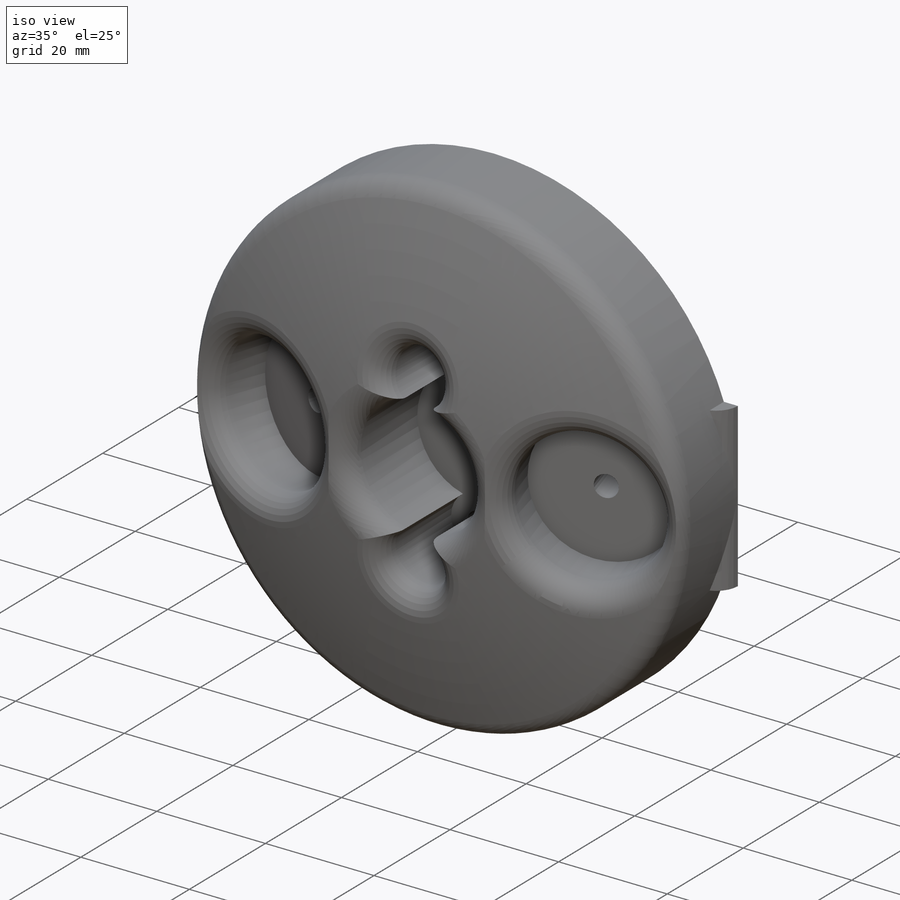
[diagram: iso view]
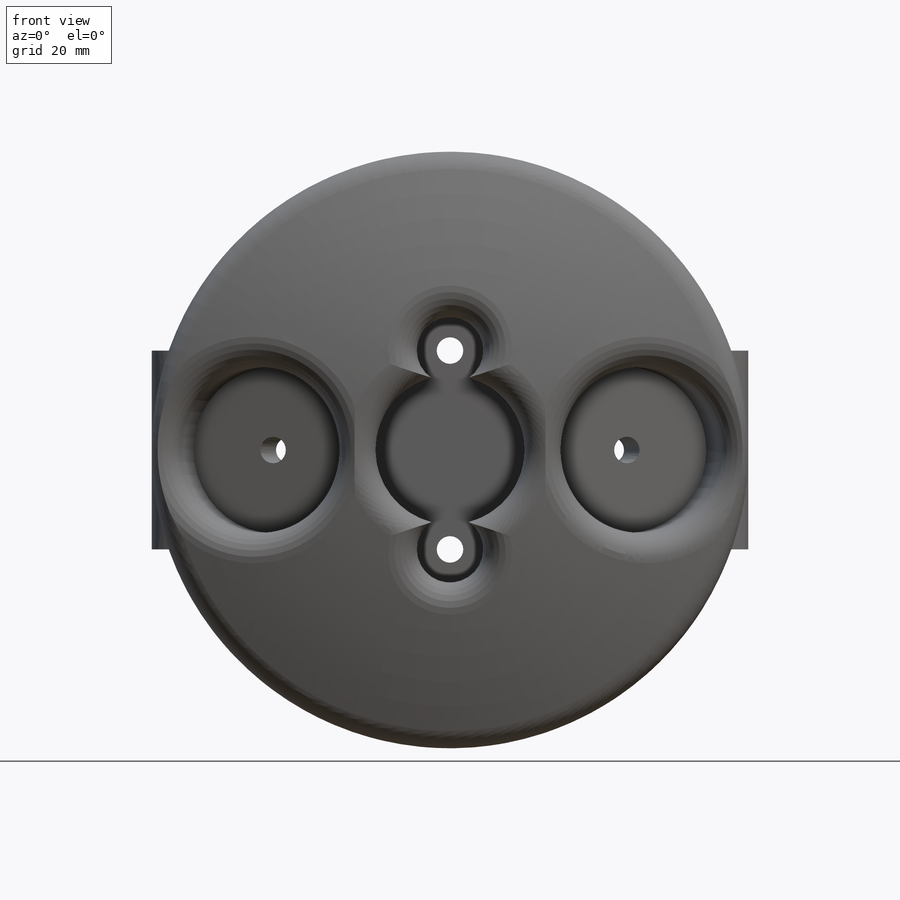
[diagram: front view]
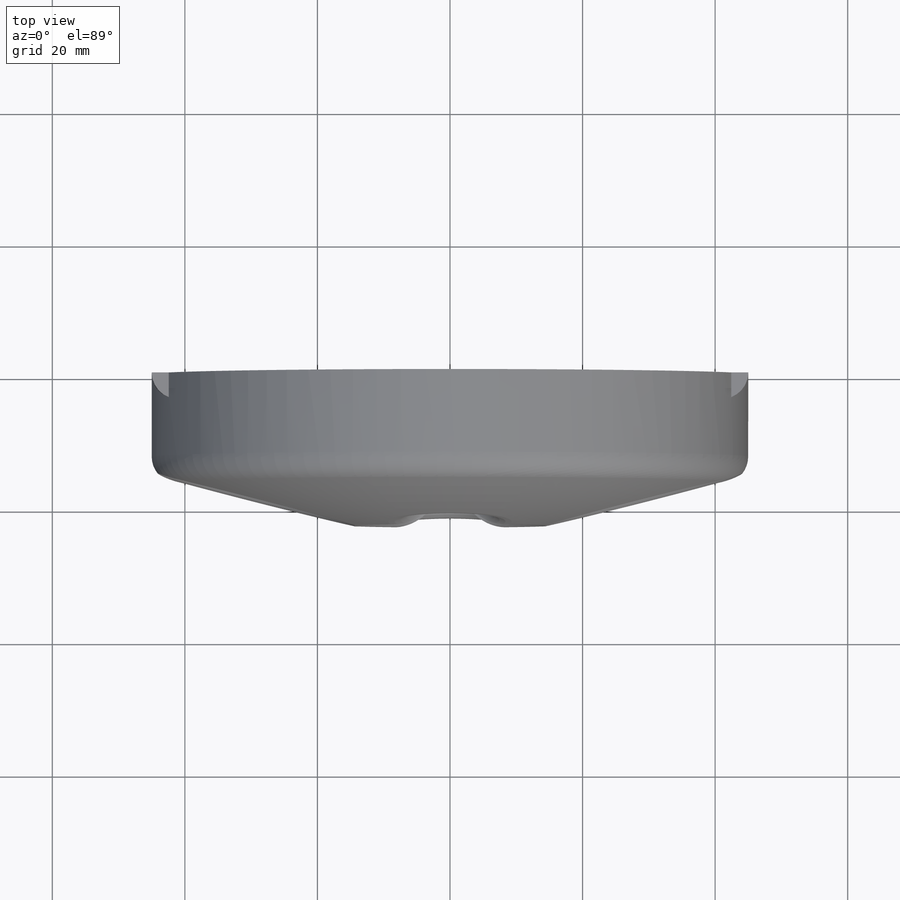
[diagram: top view]
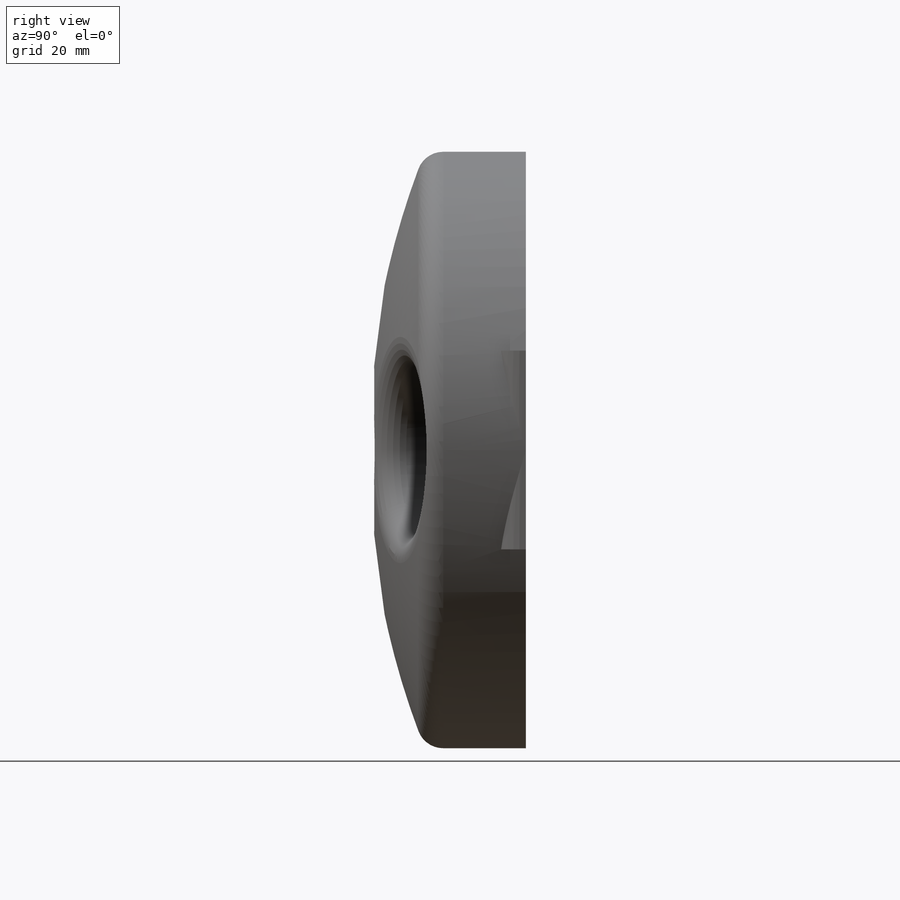
[diagram: right view]
SOLIDWORKS PART (.sldprt)
format: sldprt  version: not decoded by parser v0  size: 545,280 bytes
history: native  units: mm
features: sketch x9, cut_extrude x5, plane x3, extrude x2, fillet x2, mirror x2, material x1, revolve x1 (+10 scaffold rows collapsed)
feature tree (35):
  scaffold x10  (default folders/planes/origin — collapsed)
  material  "材质 <未指定>"
  plane  "前视基准面"
  plane  "上视基准面"
  plane  "右视基准面"
  sketch  "草图1"  dims[D1=90.0mm]
  extrude  "凸台-拉伸1"  Depth=4mm
  fillet  "圆角1"  Radius=4mm
  sketch  "草图2"
  cut_extrude  "切除-拉伸1"  Depth=4mm
  sketch  "草图3"  dims[D1=~0.372796mm]
  sketch  "草图4"  dims[D1=4.0mm]
  extrude  "凸台-拉伸2"  Depth=30mm
  sketch  "草图5"  dims[D1=4.0mm]
  cut_extrude  "切除-拉伸2"  Depth=30mm
  mirror  "镜向1"
  sketch  "草图7"  dims[D1=~37.819156mm]
  revolve  "旋转1"  Angle=180deg
  sketch  "草图8"  dims[D1=25.0mm]
  cut_extrude  "切除-拉伸4"  镜向2=0deg  [1 undecoded]
  sketch  "草图10"  dims[D1=4.0mm]
  cut_extrude  "切除-拉伸5"  Depth=10mm 镜向3=0deg
  sketch  "草图11"  dims[D1=10.0mm]
  cut_extrude  "切除-拉伸6"  Depth=39mm
  mirror  "镜向6"
  fillet  "圆角2"  Radius=4mm
decode coverage: 18 of 21 modeling features carry decoded parameters
note: ~ marks probable driven/reference dimensions
note: 1 parameter value undecoded
note: suppression state not decoded; provenance and decode notes live in map.json
